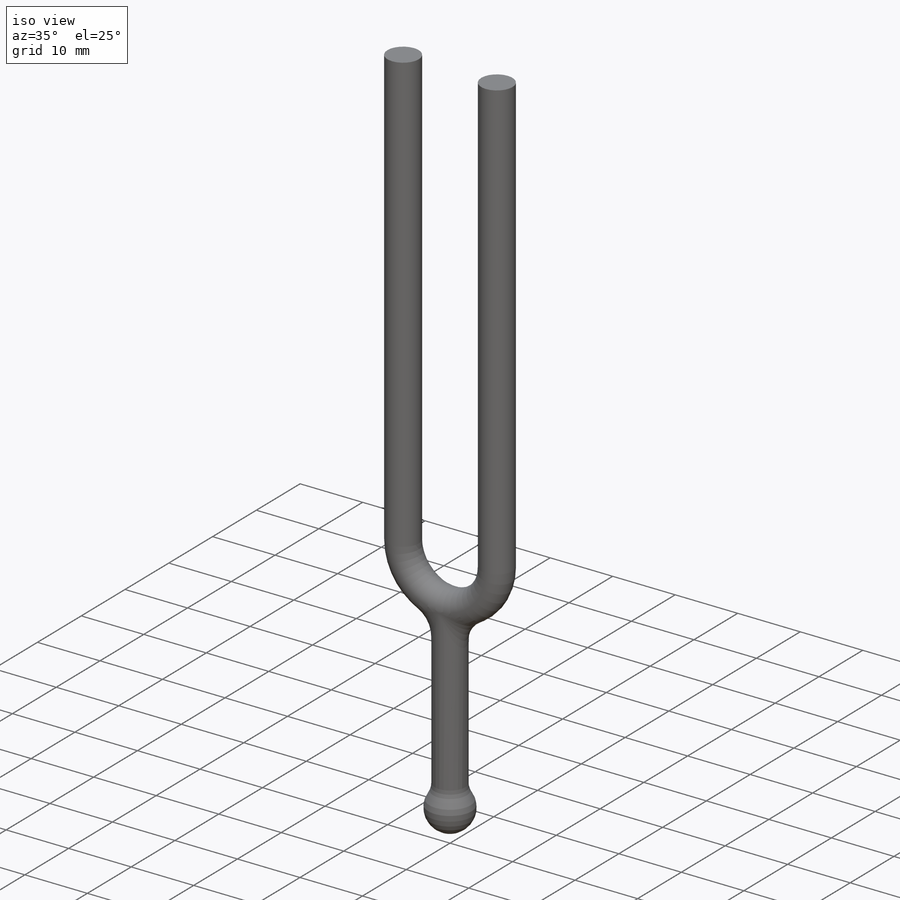
[diagram: iso view]
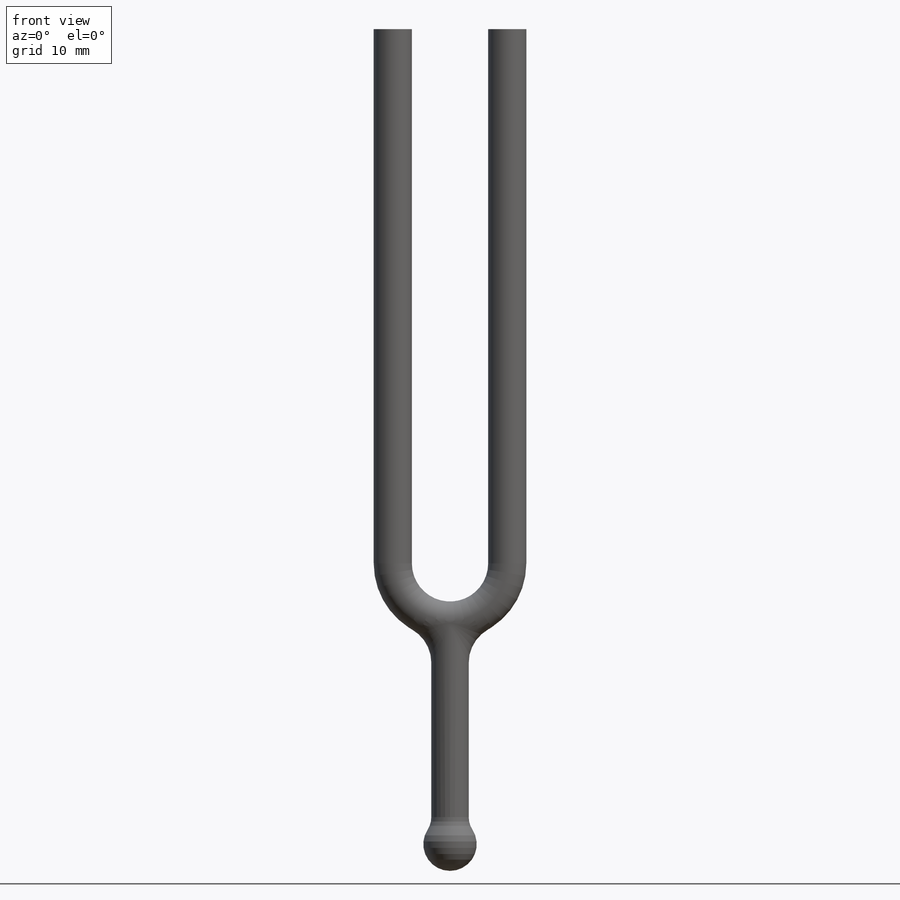
[diagram: front view]
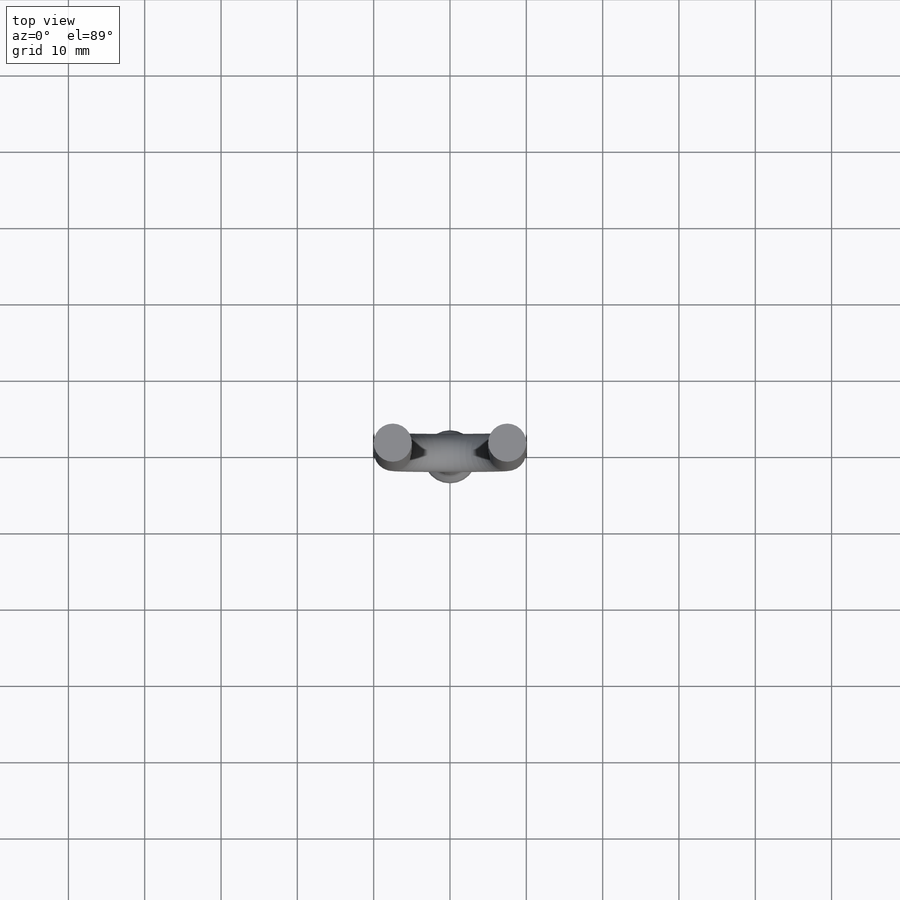
[diagram: top view]
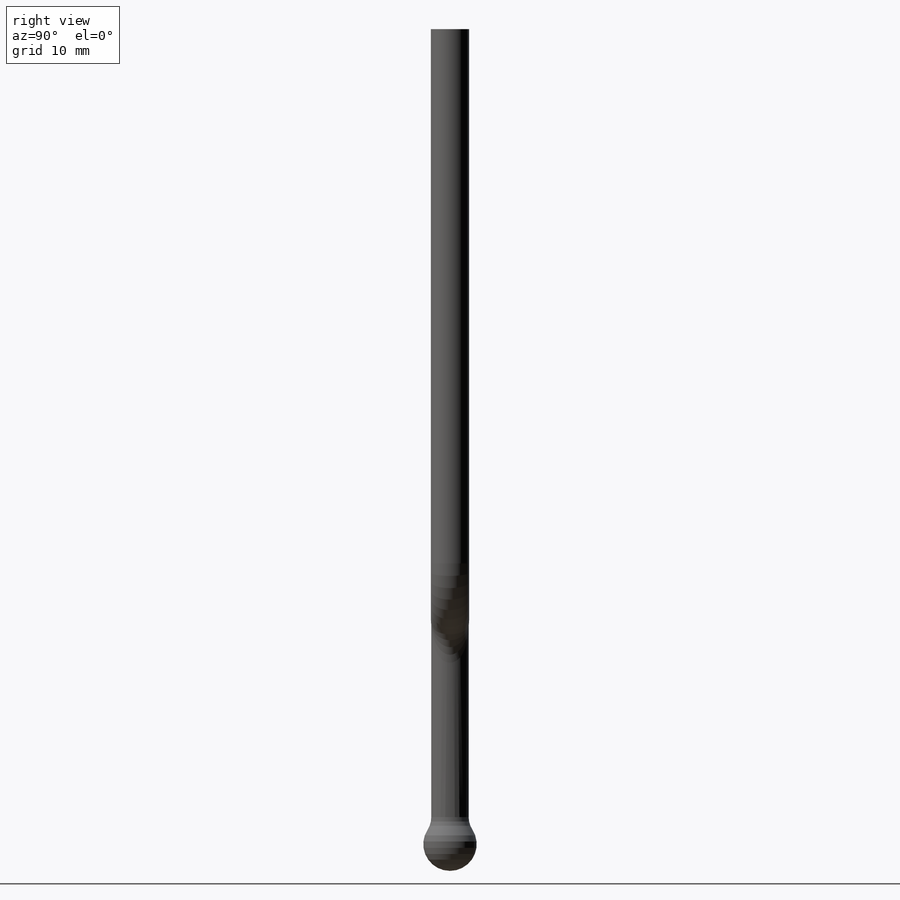
[diagram: right view]
SOLIDWORKS PART (.sldprt)
format: sldprt  version: not decoded by parser v0  size: 199,168 bytes
history: native  units: mm
features: sketch x4, fillet x2, material x1, sweep x1, mirror x1, extrude x1, revolve x1 (+11 scaffold rows collapsed)
feature tree (22):
  scaffold x11  (default folders/planes/origin — collapsed)
  material  "Material <not specified>"
  sketch  "Sketch1"  dims[D1=5.0mm]
  sketch  "Sketch2"  dims[D1=15.0mm D2=70.0mm]
  sweep  "Sweep1"
  mirror  "Mirror1"
  sketch  "Sketch3"  dims[D1=4.9mm]
  extrude  "Extrude1"  Depth=27mm
  fillet  "Fillet1"  Radius=5mm
  sketch  "Sketch6"  dims[D2=7.0mm D1=2.3mm]
  revolve  "Revolve1"  Angle=360deg
  fillet  "Fillet2"  Radius=3mm
decode coverage: 8 of 10 modeling features carry decoded parameters
note: suppression state not decoded; provenance and decode notes live in map.json
